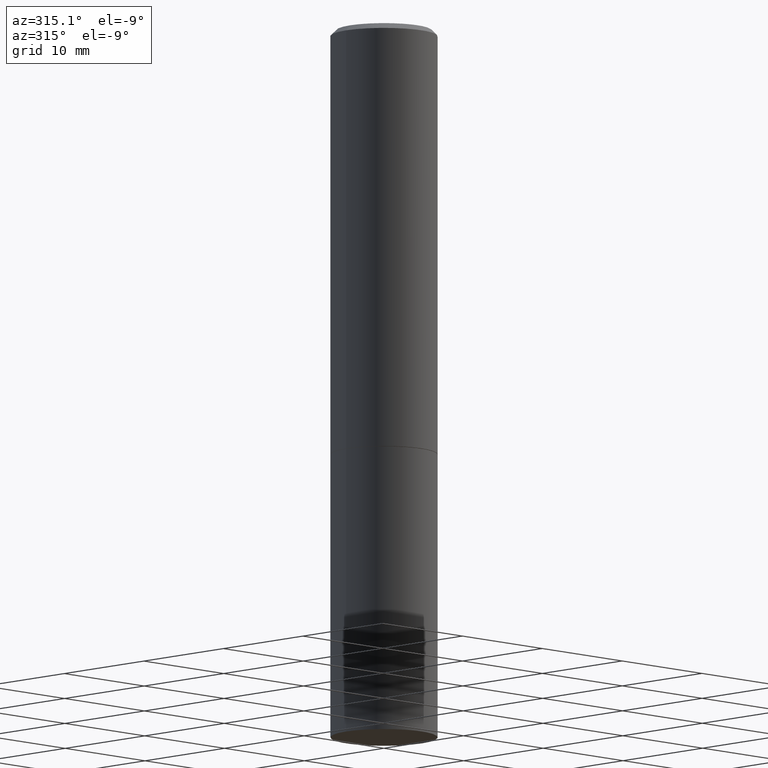
[diagram: clean part render]
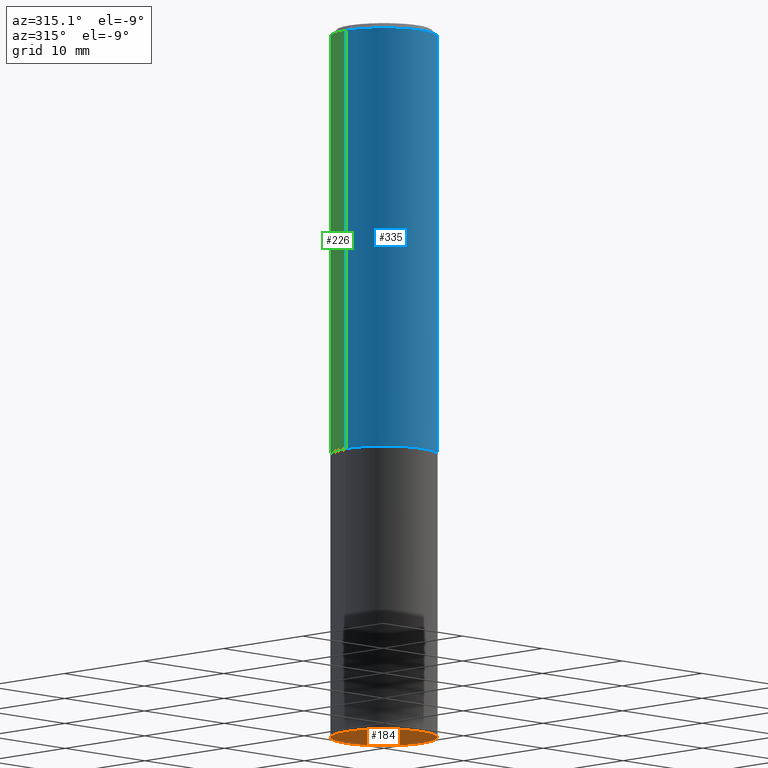
[diagram: same view with three faces highlighted in distinct colors, each labeled with its STEP entity id]
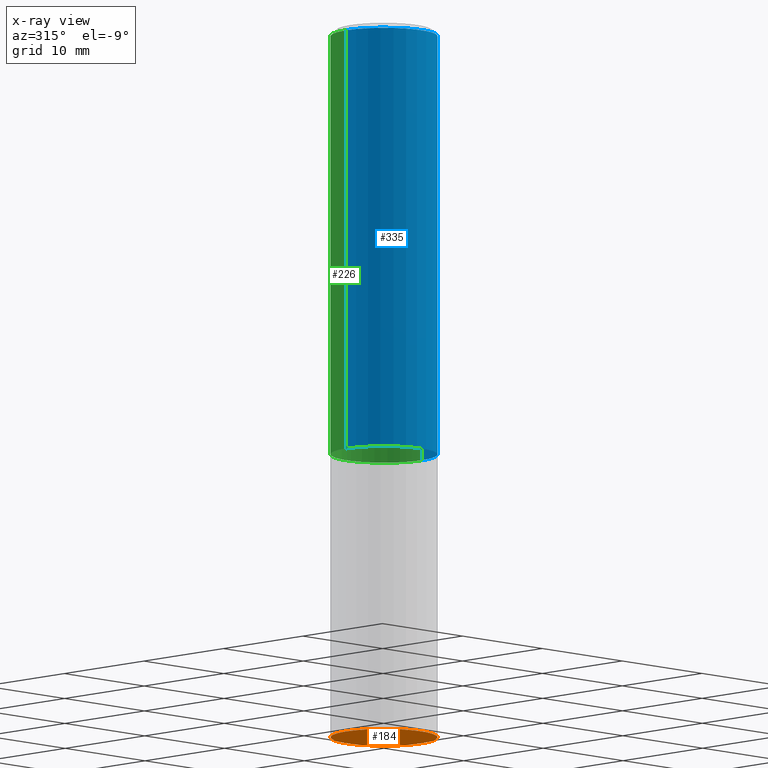
[diagram: x-ray of the same camera — body ghosted, the three highlighted faces saturated]
A machine part, auxiliary view with three faces highlighted in distinct colors.
The next image is the same camera in x-ray (body ghosted, the three faces saturated) — at least one of them is partly hidden behind the body in this view.
Their STEP definitions:

[orange] entity #184 — the highlighted planar face has unit normal (0, -0, -1).
#11 = VERTEX_POINT ( 'NONE', #12 ) ;
#12 = CARTESIAN_POINT ( 'NONE',  ( -0.1875000000000000278, -5.650695048136103317E-15, -2.500000000000000000 ) ) ;
#68 = DIRECTION ( 'NONE',  ( 1.000000000000000000, -6.982962677686266711E-15, 0.000000000000000000 ) ) ;
#109 = EDGE_CURVE ( 'NONE', #11, #273, #187, .T. ) ;
#115 = CARTESIAN_POINT ( 'NONE',  ( 1.309305502066236145E-15, 0.1874999999999912847, -2.500000000000000444 ) ) ;
#131 = ORIENTED_EDGE ( 'NONE', *, *, #180, .F. ) ;
#132 = DIRECTION ( 'NONE',  ( 1.000000000000000000, -6.982962677686266711E-15, 0.000000000000000000 ) ) ;
#134 = CARTESIAN_POINT ( 'NONE',  ( 6.113672015462842613E-29, -8.728703347107864943E-15, -2.500000000000000000 ) ) ;
#136 = FACE_OUTER_BOUND ( 'NONE', #238, .T. ) ;
#172 = DIRECTION ( 'NONE',  ( -2.445468806185136597E-29, 3.491481338843145583E-15, 1.000000000000000000 ) ) ;
#180 = EDGE_CURVE ( 'NONE', #273, #11, #284, .T. ) ;
#184 = ADVANCED_FACE ( 'NONE', ( #136 ), #248, .T. ) ;
#187 = CIRCLE ( 'NONE', #300, 0.1875000000000000278 ) ;
#193 = ORIENTED_EDGE ( 'NONE', *, *, #109, .F. ) ;
#202 = CARTESIAN_POINT ( 'NONE',  ( 6.113672015462842613E-29, -8.728703347107864943E-15, -2.500000000000000000 ) ) ;
#211 = CARTESIAN_POINT ( 'NONE',  ( 0.1875000000000000278, -1.003800884917403995E-14, -2.500000000000000000 ) ) ;
#238 = EDGE_LOOP ( 'NONE', ( #131, #193 ) ) ;
#245 = AXIS2_PLACEMENT_3D ( 'NONE', #115, #361, #288 ) ;
#248 = PLANE ( 'NONE',  #245 ) ;
#273 = VERTEX_POINT ( 'NONE', #211 ) ;
#284 = CIRCLE ( 'NONE', #307, 0.1875000000000000278 ) ;
#288 = DIRECTION ( 'NONE',  ( -1.000000000000000000, 6.982962677686265922E-15, -4.876176775795935793E-29 ) ) ;
#300 = AXIS2_PLACEMENT_3D ( 'NONE', #134, #172, #68 ) ;
#307 = AXIS2_PLACEMENT_3D ( 'NONE', #202, #311, #132 ) ;
#311 = DIRECTION ( 'NONE',  ( -2.445468806185136597E-29, 3.491481338843145583E-15, 1.000000000000000000 ) ) ;
#361 = DIRECTION ( 'NONE',  ( 2.438088387897960049E-29, -3.491481338843145188E-15, -1.000000000000000000 ) ) ;

[blue] entity #335 — the highlighted cylindrical surface (partial cylindrical patch) has radius 4.7625 mm, axis along (-0, 0, 1).
#1 = CARTESIAN_POINT ( 'NONE',  ( 3.665757740471519853E-29, -5.233730526925875958E-15, -1.499000000000000110 ) ) ;
#4 = FACE_OUTER_BOUND ( 'NONE', #41, .T. ) ;
#13 = CARTESIAN_POINT ( 'NONE',  ( 0.1874999999999998057, -1.356173001359023888E-15, -0.02000000000000004205 ) ) ;
#28 = LINE ( 'NONE', #359, #321 ) ;
#41 = EDGE_LOOP ( 'NONE', ( #163, #324, #301, #358 ) ) ;
#56 = EDGE_CURVE ( 'NONE', #292, #329, #28, .T. ) ;
#60 = DIRECTION ( 'NONE',  ( -2.445468806185136597E-29, 3.491481338843145583E-15, 1.000000000000000000 ) ) ;
#70 = DIRECTION ( 'NONE',  ( 1.000000000000000000, -6.982962677686266711E-15, 0.000000000000000000 ) ) ;
#71 = CARTESIAN_POINT ( 'NONE',  ( -0.1874999999999999722, -1.319512447301180399E-15, -1.499000000000000110 ) ) ;
#74 = CARTESIAN_POINT ( 'NONE',  ( 0.000000000000000000, 0.000000000000000000, 0.000000000000000000 ) ) ;
#78 = VECTOR ( 'NONE', #173, 39.37007874015748143 ) ;
#88 = CARTESIAN_POINT ( 'NONE',  ( 0.1874999999999999167, -1.309305502066174219E-15, 9.142831454617375408E-30 ) ) ;
#99 = DIRECTION ( 'NONE',  ( -2.445468806185136597E-29, 3.491481338843145583E-15, 1.000000000000000000 ) ) ;
#105 = CIRCLE ( 'NONE', #296, 0.1875000000000000278 ) ;
#118 = CYLINDRICAL_SURFACE ( 'NONE', #316, 0.1874999999999999167 ) ;
#128 = CIRCLE ( 'NONE', #186, 0.1874999999999998057 ) ;
#151 = EDGE_CURVE ( 'NONE', #355, #344, #309, .T. ) ;
#157 = EDGE_CURVE ( 'NONE', #292, #355, #105, .T. ) ;
#159 = CARTESIAN_POINT ( 'NONE',  ( 0.1875000000000000278, -6.543036028992050967E-15, -1.499000000000000110 ) ) ;
#163 = ORIENTED_EDGE ( 'NONE', *, *, #56, .F. ) ;
#173 = DIRECTION ( 'NONE',  ( -2.445468806185136877E-29, 3.491481338843145188E-15, 1.000000000000000000 ) ) ;
#181 = DIRECTION ( 'NONE',  ( -2.445468806185136597E-29, 3.491481338843145583E-15, 1.000000000000000000 ) ) ;
#186 = AXIS2_PLACEMENT_3D ( 'NONE', #262, #99, #70 ) ;
#197 = DIRECTION ( 'NONE',  ( -2.445468806185136877E-29, 3.491481338843145188E-15, 1.000000000000000000 ) ) ;
#204 = DIRECTION ( 'NONE',  ( 1.000000000000000000, -6.982962677686266711E-15, 0.000000000000000000 ) ) ;
#259 = CARTESIAN_POINT ( 'NONE',  ( -0.1874999999999998057, 1.239475875289310527E-15, -0.02000000000000004205 ) ) ;
#262 = CARTESIAN_POINT ( 'NONE',  ( 4.890937612370283668E-31, -6.982962677686305168E-17, -0.02000000000000004205 ) ) ;
#274 = EDGE_CURVE ( 'NONE', #329, #344, #128, .T. ) ;
#292 = VERTEX_POINT ( 'NONE', #71 ) ;
#295 = DIRECTION ( 'NONE',  ( 1.000000000000000000, -6.982962677686265922E-15, 4.876176775795935793E-29 ) ) ;
#296 = AXIS2_PLACEMENT_3D ( 'NONE', #1, #60, #204 ) ;
#301 = ORIENTED_EDGE ( 'NONE', *, *, #151, .T. ) ;
#309 = LINE ( 'NONE', #88, #78 ) ;
#316 = AXIS2_PLACEMENT_3D ( 'NONE', #74, #181, #295 ) ;
#321 = VECTOR ( 'NONE', #197, 39.37007874015748143 ) ;
#324 = ORIENTED_EDGE ( 'NONE', *, *, #157, .T. ) ;
#329 = VERTEX_POINT ( 'NONE', #259 ) ;
#335 = ADVANCED_FACE ( 'NONE', ( #4 ), #118, .T. ) ;
#344 = VERTEX_POINT ( 'NONE', #13 ) ;
#355 = VERTEX_POINT ( 'NONE', #159 ) ;
#358 = ORIENTED_EDGE ( 'NONE', *, *, #274, .F. ) ;
#359 = CARTESIAN_POINT ( 'NONE',  ( -0.1874999999999999167, 1.332267629550187257E-15, -9.223003294227943787E-30 ) ) ;

[green] entity #226 — the highlighted cylindrical surface (partial cylindrical patch) has radius 4.7625 mm, axis along (-0, 0, 1).
#13 = CARTESIAN_POINT ( 'NONE',  ( 0.1874999999999998057, -1.356173001359023888E-15, -0.02000000000000004205 ) ) ;
#28 = LINE ( 'NONE', #359, #321 ) ;
#38 = CARTESIAN_POINT ( 'NONE',  ( 4.890937612370283668E-31, -6.982962677686305168E-17, -0.02000000000000004205 ) ) ;
#56 = EDGE_CURVE ( 'NONE', #292, #329, #28, .T. ) ;
#57 = CIRCLE ( 'NONE', #233, 0.1875000000000000278 ) ;
#71 = CARTESIAN_POINT ( 'NONE',  ( -0.1874999999999999722, -1.319512447301180399E-15, -1.499000000000000110 ) ) ;
#77 = EDGE_LOOP ( 'NONE', ( #221, #98, #126, #160 ) ) ;
#78 = VECTOR ( 'NONE', #173, 39.37007874015748143 ) ;
#87 = FACE_OUTER_BOUND ( 'NONE', #77, .T. ) ;
#88 = CARTESIAN_POINT ( 'NONE',  ( 0.1874999999999999167, -1.309305502066174219E-15, 9.142831454617375408E-30 ) ) ;
#89 = DIRECTION ( 'NONE',  ( -2.445468806185136597E-29, 3.491481338843145583E-15, 1.000000000000000000 ) ) ;
#98 = ORIENTED_EDGE ( 'NONE', *, *, #56, .T. ) ;
#101 = CIRCLE ( 'NONE', #338, 0.1874999999999998057 ) ;
#113 = CARTESIAN_POINT ( 'NONE',  ( 0.000000000000000000, 0.000000000000000000, 0.000000000000000000 ) ) ;
#126 = ORIENTED_EDGE ( 'NONE', *, *, #169, .F. ) ;
#138 = EDGE_CURVE ( 'NONE', #355, #292, #57, .T. ) ;
#141 = DIRECTION ( 'NONE',  ( -2.445468806185136597E-29, 3.491481338843145583E-15, 1.000000000000000000 ) ) ;
#151 = EDGE_CURVE ( 'NONE', #355, #344, #309, .T. ) ;
#159 = CARTESIAN_POINT ( 'NONE',  ( 0.1875000000000000278, -6.543036028992050967E-15, -1.499000000000000110 ) ) ;
#160 = ORIENTED_EDGE ( 'NONE', *, *, #151, .F. ) ;
#169 = EDGE_CURVE ( 'NONE', #344, #329, #101, .T. ) ;
#173 = DIRECTION ( 'NONE',  ( -2.445468806185136877E-29, 3.491481338843145188E-15, 1.000000000000000000 ) ) ;
#197 = DIRECTION ( 'NONE',  ( -2.445468806185136877E-29, 3.491481338843145188E-15, 1.000000000000000000 ) ) ;
#221 = ORIENTED_EDGE ( 'NONE', *, *, #138, .T. ) ;
#226 = ADVANCED_FACE ( 'NONE', ( #87 ), #253, .T. ) ;
#229 = DIRECTION ( 'NONE',  ( 1.000000000000000000, -6.982962677686266711E-15, 0.000000000000000000 ) ) ;
#231 = DIRECTION ( 'NONE',  ( 1.000000000000000000, -6.982962677686265922E-15, 4.876176775795935793E-29 ) ) ;
#233 = AXIS2_PLACEMENT_3D ( 'NONE', #332, #255, #310 ) ;
#253 = CYLINDRICAL_SURFACE ( 'NONE', #349, 0.1874999999999999167 ) ;
#255 = DIRECTION ( 'NONE',  ( -2.445468806185136597E-29, 3.491481338843145583E-15, 1.000000000000000000 ) ) ;
#259 = CARTESIAN_POINT ( 'NONE',  ( -0.1874999999999998057, 1.239475875289310527E-15, -0.02000000000000004205 ) ) ;
#292 = VERTEX_POINT ( 'NONE', #71 ) ;
#309 = LINE ( 'NONE', #88, #78 ) ;
#310 = DIRECTION ( 'NONE',  ( 1.000000000000000000, -6.982962677686266711E-15, 0.000000000000000000 ) ) ;
#321 = VECTOR ( 'NONE', #197, 39.37007874015748143 ) ;
#329 = VERTEX_POINT ( 'NONE', #259 ) ;
#332 = CARTESIAN_POINT ( 'NONE',  ( 3.665757740471519853E-29, -5.233730526925875958E-15, -1.499000000000000110 ) ) ;
#338 = AXIS2_PLACEMENT_3D ( 'NONE', #38, #141, #229 ) ;
#344 = VERTEX_POINT ( 'NONE', #13 ) ;
#349 = AXIS2_PLACEMENT_3D ( 'NONE', #113, #89, #231 ) ;
#355 = VERTEX_POINT ( 'NONE', #159 ) ;
#359 = CARTESIAN_POINT ( 'NONE',  ( -0.1874999999999999167, 1.332267629550187257E-15, -9.223003294227943787E-30 ) ) ;